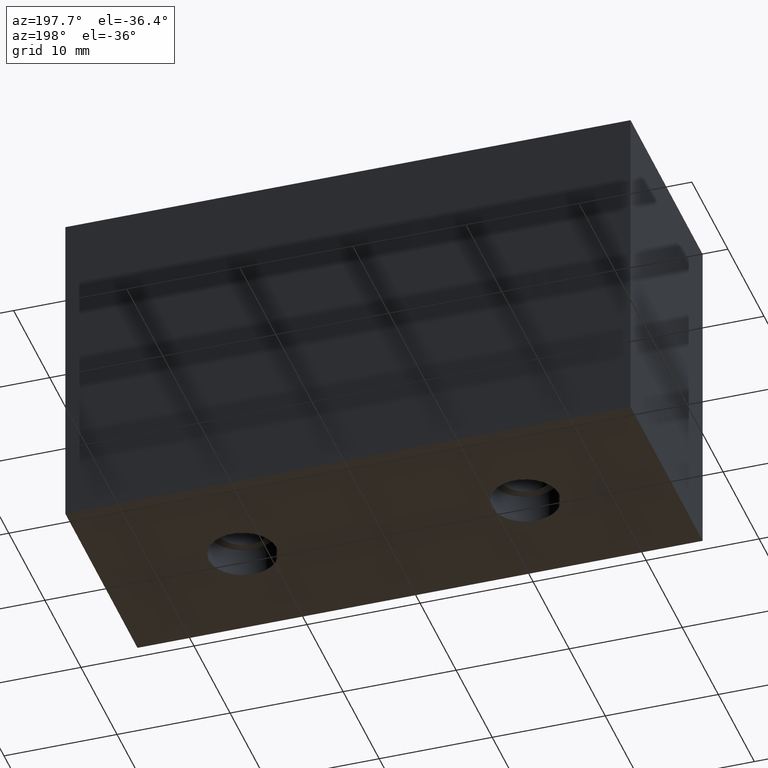
[diagram: clean part render]
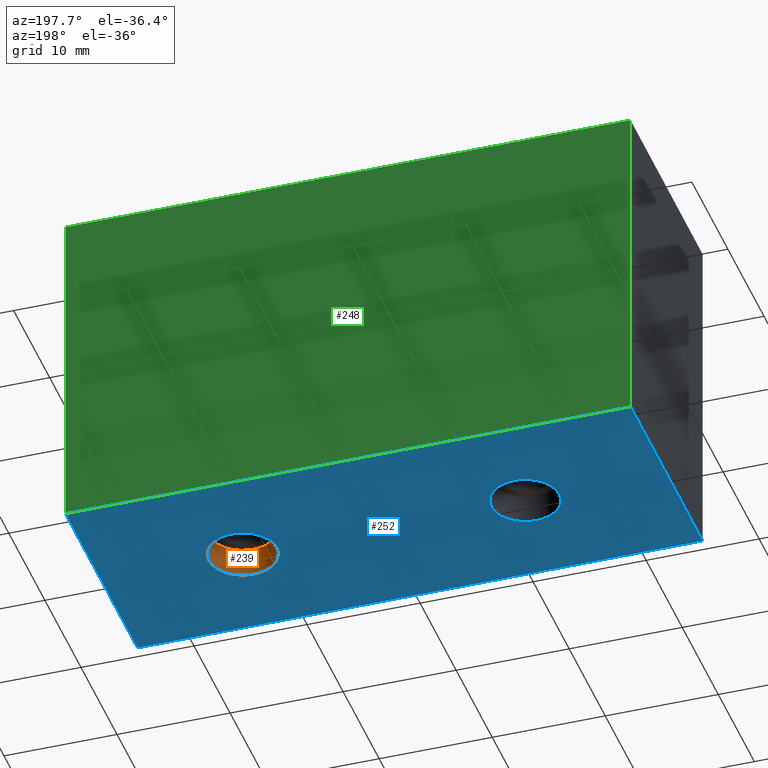
[diagram: same view with three faces highlighted in distinct colors, each labeled with its STEP entity id]
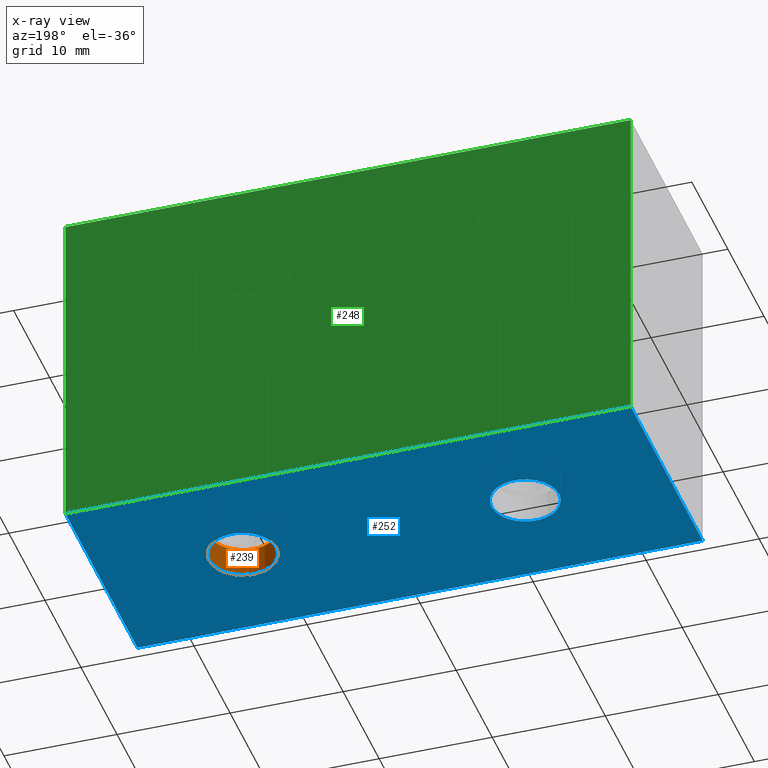
[diagram: x-ray of the same camera — body ghosted, the three highlighted faces saturated]
A machine part, auxiliary view with three faces highlighted in distinct colors.
The next image is the same camera in x-ray (body ghosted, the three faces saturated) — at least one of them is partly hidden behind the body in this view.
Their STEP definitions:

[orange] entity #239 — the highlighted cylindrical surface (bore or boss wall) has radius 3 mm, axis along (0, 0, -1).
#35=FACE_OUTER_BOUND('',#52,.T.);
#52=EDGE_LOOP('',(#177,#178,#179,#180));
#74=LINE('',#394,#92);
#92=VECTOR('',#321,3.);
#112=CIRCLE('',#282,3.);
#113=CIRCLE('',#283,3.);
#124=VERTEX_POINT('',#391);
#125=VERTEX_POINT('',#393);
#145=EDGE_CURVE('',#124,#124,#112,.T.);
#146=EDGE_CURVE('',#124,#125,#74,.T.);
#147=EDGE_CURVE('',#125,#125,#113,.T.);
#177=ORIENTED_EDGE('',*,*,#145,.F.);
#178=ORIENTED_EDGE('',*,*,#146,.T.);
#179=ORIENTED_EDGE('',*,*,#147,.F.);
#180=ORIENTED_EDGE('',*,*,#146,.F.);
#232=CYLINDRICAL_SURFACE('',#281,3.);
#239=ADVANCED_FACE('',(#35),#232,.F.);
#281=AXIS2_PLACEMENT_3D('',#390,#317,#318);
#282=AXIS2_PLACEMENT_3D('',#392,#319,#320);
#283=AXIS2_PLACEMENT_3D('',#395,#322,#323);
#317=DIRECTION('center_axis',(0.,0.,-1.));
#318=DIRECTION('ref_axis',(-1.,0.,0.));
#319=DIRECTION('center_axis',(0.,0.,1.));
#320=DIRECTION('ref_axis',(-1.,0.,0.));
#321=DIRECTION('',(0.,0.,1.));
#322=DIRECTION('center_axis',(0.,0.,-1.));
#323=DIRECTION('ref_axis',(-1.,0.,0.));
#390=CARTESIAN_POINT('Origin',(12.5,9.51967419793973E-15,1.3));
#391=CARTESIAN_POINT('',(15.5,9.15228015819552E-15,0.));
#392=CARTESIAN_POINT('Origin',(12.5,9.51967419793973E-15,0.));
#393=CARTESIAN_POINT('',(15.5,9.15228015819552E-15,2.6));
#394=CARTESIAN_POINT('',(15.5,9.15228015819552E-15,1.3));
#395=CARTESIAN_POINT('Origin',(12.5,9.51967419793973E-15,2.6));

[blue] entity #252 — the highlighted planar face has unit normal (0, 0, 1).
#21=FACE_BOUND('',#71,.T.);
#22=FACE_BOUND('',#72,.T.);
#32=PLANE('',#303);
#48=FACE_OUTER_BOUND('',#70,.T.);
#70=EDGE_LOOP('',(#225,#226,#227,#228));
#71=EDGE_LOOP('',(#229));
#72=EDGE_LOOP('',(#230));
#79=LINE('',#424,#97);
#83=LINE('',#432,#101);
#86=LINE('',#438,#104);
#89=LINE('',#443,#107);
#97=VECTOR('',#358,10.);
#101=VECTOR('',#364,10.);
#104=VECTOR('',#369,10.);
#107=VECTOR('',#374,10.);
#109=CIRCLE('',#277,3.);
#112=CIRCLE('',#282,3.);
#121=VERTEX_POINT('',#382);
#124=VERTEX_POINT('',#391);
#133=VERTEX_POINT('',#422);
#134=VERTEX_POINT('',#423);
#137=VERTEX_POINT('',#431);
#139=VERTEX_POINT('',#437);
#141=EDGE_CURVE('',#121,#121,#109,.T.);
#145=EDGE_CURVE('',#124,#124,#112,.T.);
#159=EDGE_CURVE('',#133,#134,#79,.T.);
#163=EDGE_CURVE('',#137,#133,#83,.T.);
#166=EDGE_CURVE('',#139,#137,#86,.T.);
#169=EDGE_CURVE('',#134,#139,#89,.T.);
#225=ORIENTED_EDGE('',*,*,#169,.F.);
#226=ORIENTED_EDGE('',*,*,#159,.F.);
#227=ORIENTED_EDGE('',*,*,#163,.F.);
#228=ORIENTED_EDGE('',*,*,#166,.F.);
#229=ORIENTED_EDGE('',*,*,#141,.T.);
#230=ORIENTED_EDGE('',*,*,#145,.T.);
#252=ADVANCED_FACE('',(#48,#21,#22),#32,.F.);
#277=AXIS2_PLACEMENT_3D('',#383,#308,#309);
#282=AXIS2_PLACEMENT_3D('',#392,#319,#320);
#303=AXIS2_PLACEMENT_3D('',#446,#378,#379);
#308=DIRECTION('center_axis',(0.,0.,1.));
#309=DIRECTION('ref_axis',(-1.,0.,0.));
#319=DIRECTION('center_axis',(0.,0.,1.));
#320=DIRECTION('ref_axis',(-1.,0.,0.));
#358=DIRECTION('',(4.44089209850063E-16,-1.,0.));
#364=DIRECTION('',(-1.,-1.33226762955019E-16,0.));
#369=DIRECTION('',(-2.22044604925031E-16,1.,0.));
#374=DIRECTION('',(1.,0.,0.));
#378=DIRECTION('center_axis',(0.,0.,1.));
#379=DIRECTION('ref_axis',(1.,0.,0.));
#382=CARTESIAN_POINT('',(-9.5,-1.94995008805605E-15,0.));
#383=CARTESIAN_POINT('Origin',(-12.5,-1.58255604831184E-15,0.));
#391=CARTESIAN_POINT('',(15.5,9.15228015819552E-15,0.));
#392=CARTESIAN_POINT('Origin',(12.5,9.51967419793973E-15,0.));
#422=CARTESIAN_POINT('',(-25.,9.99999999999999,0.));
#423=CARTESIAN_POINT('',(-25.,-10.,0.));
#424=CARTESIAN_POINT('',(-25.,9.99999999999999,0.));
#431=CARTESIAN_POINT('',(25.,10.,0.));
#432=CARTESIAN_POINT('',(25.,10.,0.));
#437=CARTESIAN_POINT('',(25.,-10.,0.));
#438=CARTESIAN_POINT('',(25.,-10.,0.));
#443=CARTESIAN_POINT('',(-25.,-10.,0.));
#446=CARTESIAN_POINT('Origin',(4.75809867696496E-16,-7.93016446160826E-16,
0.));

[green] entity #248 — the highlighted planar face has unit normal (-0, 1, 0).
#28=PLANE('',#299);
#44=FACE_OUTER_BOUND('',#64,.T.);
#64=EDGE_LOOP('',(#207,#208,#209,#210));
#82=LINE('',#429,#100);
#83=LINE('',#432,#101);
#84=LINE('',#434,#102);
#85=LINE('',#435,#103);
#100=VECTOR('',#361,10.);
#101=VECTOR('',#364,10.);
#102=VECTOR('',#365,10.);
#103=VECTOR('',#366,10.);
#133=VERTEX_POINT('',#422);
#136=VERTEX_POINT('',#427);
#137=VERTEX_POINT('',#431);
#138=VERTEX_POINT('',#433);
#162=EDGE_CURVE('',#133,#136,#82,.T.);
#163=EDGE_CURVE('',#137,#133,#83,.T.);
#164=EDGE_CURVE('',#138,#136,#84,.T.);
#165=EDGE_CURVE('',#137,#138,#85,.T.);
#207=ORIENTED_EDGE('',*,*,#163,.T.);
#208=ORIENTED_EDGE('',*,*,#162,.T.);
#209=ORIENTED_EDGE('',*,*,#164,.F.);
#210=ORIENTED_EDGE('',*,*,#165,.F.);
#248=ADVANCED_FACE('',(#44),#28,.T.);
#299=AXIS2_PLACEMENT_3D('',#430,#362,#363);
#361=DIRECTION('',(0.,0.,1.));
#362=DIRECTION('center_axis',(-1.33226762955019E-16,1.,0.));
#363=DIRECTION('ref_axis',(-1.,-1.33226762955019E-16,0.));
#364=DIRECTION('',(-1.,-1.33226762955019E-16,0.));
#365=DIRECTION('',(-1.,-1.33226762955019E-16,0.));
#366=DIRECTION('',(0.,0.,1.));
#422=CARTESIAN_POINT('',(-25.,9.99999999999999,0.));
#427=CARTESIAN_POINT('',(-25.,9.99999999999999,30.));
#429=CARTESIAN_POINT('',(-25.,9.99999999999999,0.));
#430=CARTESIAN_POINT('Origin',(25.,10.,0.));
#431=CARTESIAN_POINT('',(25.,10.,0.));
#432=CARTESIAN_POINT('',(25.,10.,0.));
#433=CARTESIAN_POINT('',(25.,10.,30.));
#434=CARTESIAN_POINT('',(25.,10.,30.));
#435=CARTESIAN_POINT('',(25.,10.,0.));